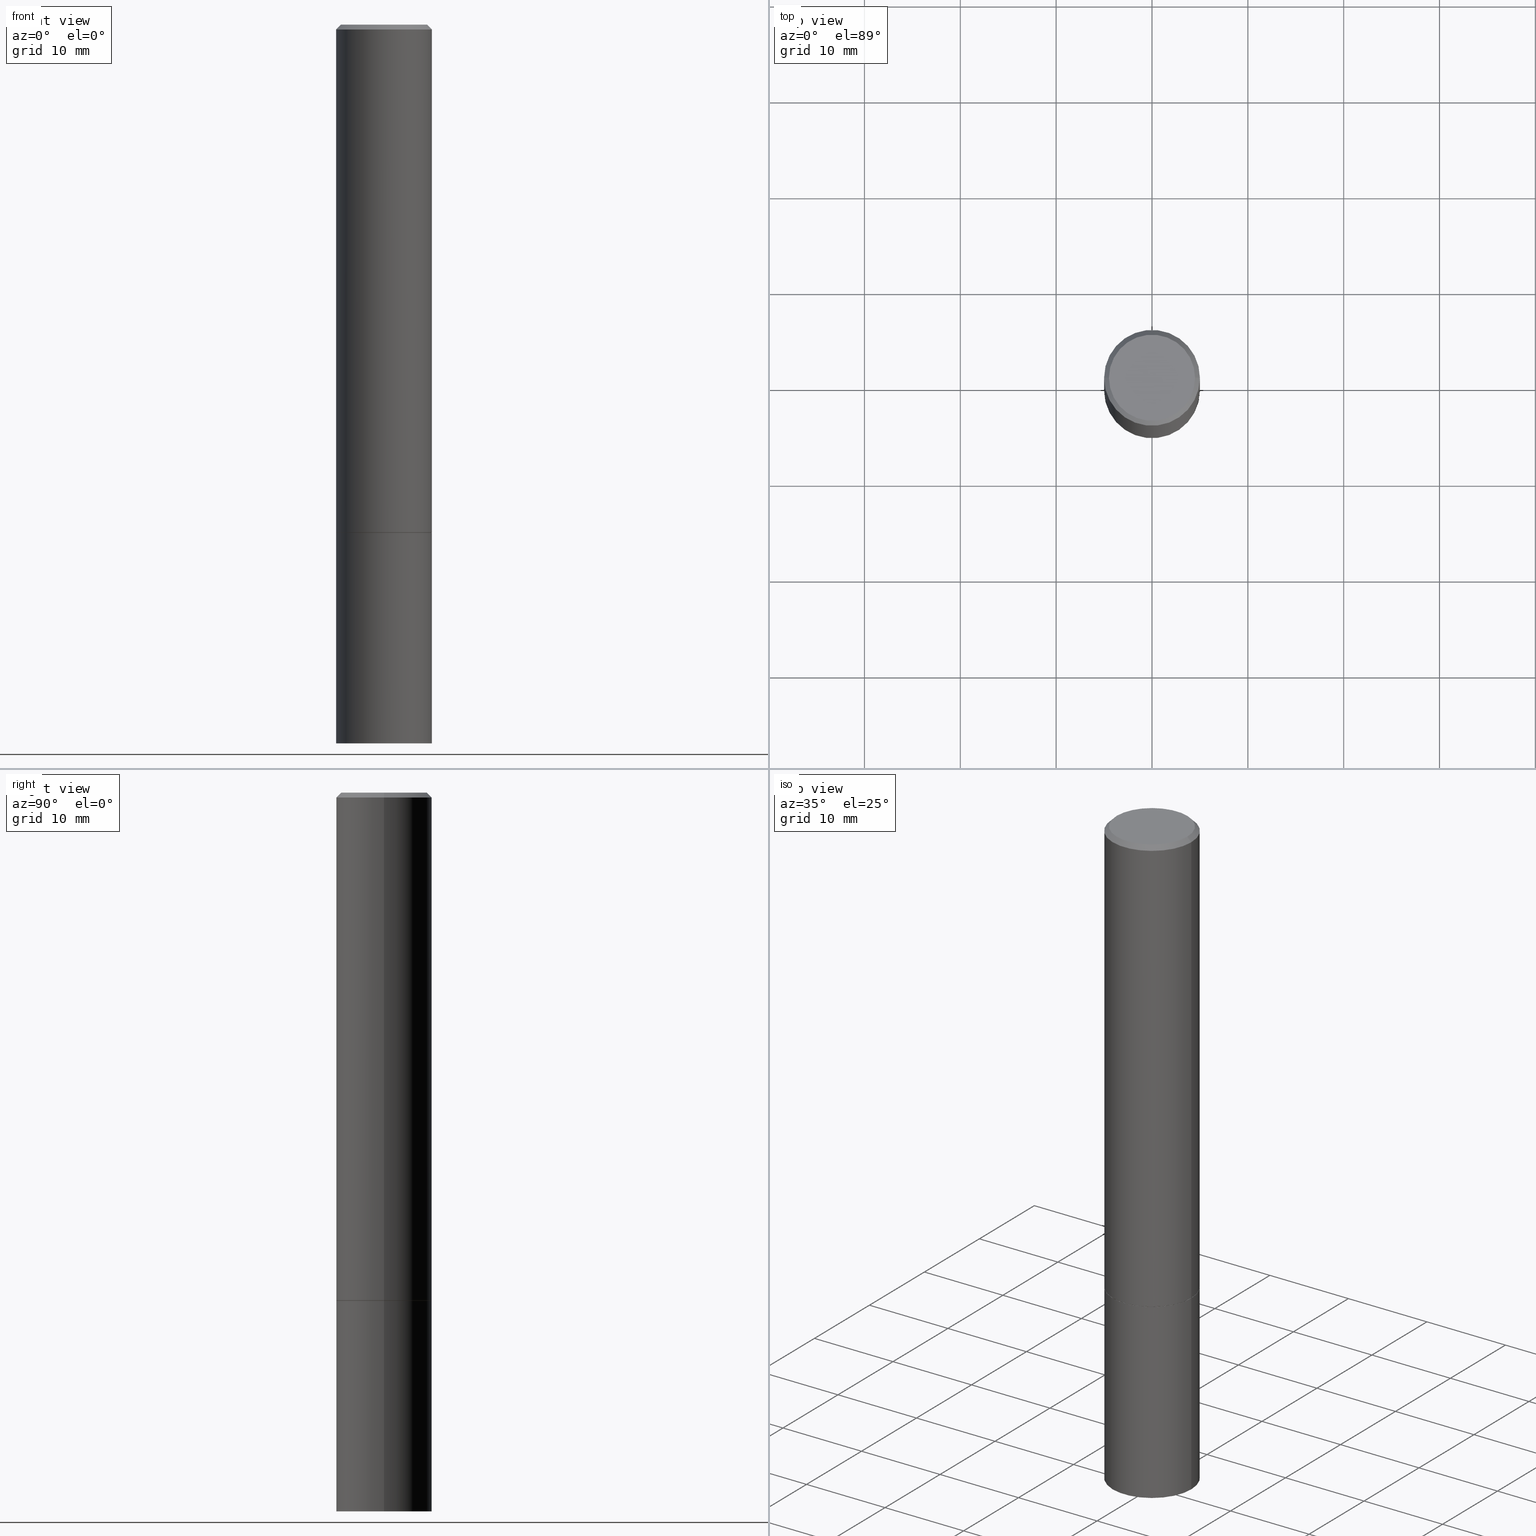
[diagram: canonical four-view strip — front | top / right | iso, engineering-drawing reading convention]
A machine part, canonical four-view strip (front | top / right | iso — engineering-drawing reading convention). The complete STEP part file that produces these views, byte-faithful:
ISO-10303-21;
HEADER;
FILE_DESCRIPTION (( 'STEP AP203' ),
    '1' );
FILE_NAME ('48513.STEP',
    '2024-02-28T11:22:40',
    ( '' ),
    ( '' ),
    'SwSTEP 2.0',
    'SolidWorks 2023',
    '' );
FILE_SCHEMA (( 'CONFIG_CONTROL_DESIGN' ));
ENDSEC;

DATA;
#1 = VERTEX_POINT ( 'NONE', #18 ) ;
#2 = PERSON_AND_ORGANIZATION ( #148, #145 ) ;
#3 = ADVANCED_FACE ( 'NONE', ( #242 ), #350, .T. ) ;
#4 = ORIENTED_EDGE ( 'NONE', *, *, #133, .T. ) ;
#5 = VECTOR ( 'NONE', #69, 39.37007874015748143 ) ;
#6 = VECTOR ( 'NONE', #219, 39.37007874015748854 ) ;
#7 = PLANE ( 'NONE',  #114 ) ;
#8 = ORIENTED_EDGE ( 'NONE', *, *, #235, .F. ) ;
#9 = ADVANCED_FACE ( 'NONE', ( #199 ), #88, .T. ) ;
#10 = CARTESIAN_POINT ( 'NONE',  ( -0.1968499999999997752, 1.304766576325677127E-15, -0.02000000000000001776 ) ) ;
#11 = DIRECTION ( 'NONE',  ( -2.445468806185136597E-29, 3.491481338843145583E-15, 1.000000000000000000 ) ) ;
#12 = CARTESIAN_POINT ( 'NONE',  ( 0.1968499999999997752, -1.420318657638187347E-15, -0.02000000000000001776 ) ) ;
#13 = CARTESIAN_POINT ( 'NONE',  ( 4.890937612370276662E-31, -6.982962677686296539E-17, -0.02000000000000001776 ) ) ;
#14 = DESIGN_CONTEXT ( 'detailed design', #366, 'design' ) ;
#15 = LINE ( 'NONE', #220, #198 ) ;
#16 = CARTESIAN_POINT ( 'NONE',  ( -0.1968499999999999139, 1.398703375343756604E-15, -9.682923725166778072E-30 ) ) ;
#17 = AXIS2_PLACEMENT_3D ( 'NONE', #21, #128, #244 ) ;
#18 = CARTESIAN_POINT ( 'NONE',  ( 0.1968500000000000250, -8.660270312866532536E-15, -2.086699999999999999 ) ) ;
#19 = CARTESIAN_POINT ( 'NONE',  ( 4.890937612370276662E-31, -6.982962677686296539E-17, -0.02000000000000001776 ) ) ;
#20 = APPROVAL ( #336, 'UNSPECIFIED' ) ;
#21 = CARTESIAN_POINT ( 'NONE',  ( 1.234936949548814617E-15, 0.1768499999999997851, -6.153342185293593634E-16 ) ) ;
#22 = CIRCLE ( 'NONE', #302, 0.1968500000000000250 ) ;
#23 = LOCAL_TIME ( 6, 22, 40.00000000000000000, #27 ) ;
#24 = ADVANCED_FACE ( 'NONE', ( #39 ), #125, .F. ) ;
#25 = PERSON_AND_ORGANIZATION ( #148, #145 ) ;
#26 = DIRECTION ( 'NONE',  ( 1.000000000000000000, 0.000000000000000000, 0.000000000000000000 ) ) ;
#27 = COORDINATED_UNIVERSAL_TIME_OFFSET ( 5, 0, .BEHIND. ) ;
#28 = EDGE_CURVE ( 'NONE', #181, #1, #52, .T. ) ;
#29 = VERTEX_POINT ( 'NONE', #64 ) ;
#30 = LOCAL_TIME ( 6, 22, 40.00000000000000000, #53 ) ;
#31 = SECURITY_CLASSIFICATION_LEVEL ( 'unclassified' ) ;
#32 = ORIENTED_EDGE ( 'NONE', *, *, #365, .F. ) ;
#33 = EDGE_LOOP ( 'NONE', ( #126, #155, #139, #120 ) ) ;
#34 = CARTESIAN_POINT ( 'NONE',  ( 5.102959757866523939E-29, -7.285674109763990928E-15, -2.086699999999999999 ) ) ;
#35 = ADVANCED_FACE ( 'NONE', ( #123 ), #175, .T. ) ;
#36 = CIRCLE ( 'NONE', #345, 0.1768499999999997851 ) ;
#37 = LINE ( 'NONE', #10, #312 ) ;
#38 = ORIENTED_EDGE ( 'NONE', *, *, #304, .T. ) ;
#39 = FACE_OUTER_BOUND ( 'NONE', #79, .T. ) ;
#40 = ORIENTED_EDGE ( 'NONE', *, *, #279, .F. ) ;
#41 = CARTESIAN_POINT ( 'NONE',  ( 5.102959757866523939E-29, -7.285674109763990928E-15, -2.086699999999999999 ) ) ;
#42 = ORIENTED_EDGE ( 'NONE', *, *, #341, .F. ) ;
#43 = CARTESIAN_POINT ( 'NONE',  ( -0.1968500000000000250, -7.398956728206258518E-15, -2.952799999999999869 ) ) ;
#44 = FACE_OUTER_BOUND ( 'NONE', #356, .T. ) ;
#45 = CARTESIAN_POINT ( 'NONE',  ( 0.000000000000000000, 0.000000000000000000, 0.000000000000000000 ) ) ;
#46 = APPLICATION_CONTEXT ( 'configuration controlled 3d designs of mechanical parts and assemblies' ) ;
#47 = CIRCLE ( 'NONE', #109, 0.1968499999999997752 ) ;
#48 = DIRECTION ( 'NONE',  ( -2.445468806185136877E-29, 3.491481338843145188E-15, 1.000000000000000000 ) ) ;
#49 = CARTESIAN_POINT ( 'NONE',  ( 7.220980290903470182E-29, -1.030964609733603853E-14, -2.952799999999999869 ) ) ;
#50 = EDGE_CURVE ( 'NONE', #286, #29, #223, .T. ) ;
#51 = DATE_TIME_ROLE ( 'creation_date' ) ;
#52 = CIRCLE ( 'NONE', #67, 0.1968500000000000250 ) ;
#53 = COORDINATED_UNIVERSAL_TIME_OFFSET ( 5, 0, .BEHIND. ) ;
#54 = VERTEX_POINT ( 'NONE', #176 ) ;
#55 = EDGE_LOOP ( 'NONE', ( #213, #200 ) ) ;
#56 = CARTESIAN_POINT ( 'NONE',  ( 0.000000000000000000, 0.000000000000000000, 0.000000000000000000 ) ) ;
#57 = CIRCLE ( 'NONE', #313, 0.1958499999999999963 ) ;
#58 = MANIFOLD_SOLID_BREP ( 'Body-Move/Copy2[1]', #177 ) ;
#59 = CIRCLE ( 'NONE', #363, 0.1968499999999997752 ) ;
#60 = APPROVAL_STATUS ( 'not_yet_approved' ) ;
#61 = DIRECTION ( 'NONE',  ( -2.445468806185136597E-29, 3.491481338843145583E-15, 1.000000000000000000 ) ) ;
#62 = ORIENTED_EDGE ( 'NONE', *, *, #185, .F. ) ;
#63 = MANIFOLD_SOLID_BREP ( 'Body-Move/Copy2[2]', #276 ) ;
#64 = CARTESIAN_POINT ( 'NONE',  ( 0.1968500000000000250, -8.656778831527691107E-15, -2.085699999999999665 ) ) ;
#65 = ORIENTED_EDGE ( 'NONE', *, *, #349, .T. ) ;
#66 = CARTESIAN_POINT ( 'NONE',  ( 5.100514289060338336E-29, -7.282182628425147921E-15, -2.085699999999999665 ) ) ;
#67 = AXIS2_PLACEMENT_3D ( 'NONE', #41, #269, #346 ) ;
#68 = FACE_OUTER_BOUND ( 'NONE', #292, .T. ) ;
#69 = DIRECTION ( 'NONE',  ( -2.445468806185136877E-29, 3.491481338843145188E-15, 1.000000000000000000 ) ) ;
#70 = DIRECTION ( 'NONE',  ( -2.445468806185136597E-29, 3.491481338843145583E-15, 1.000000000000000000 ) ) ;
#71 = EDGE_LOOP ( 'NONE', ( #91, #151, #136, #354 ) ) ;
#72 = AXIS2_PLACEMENT_3D ( 'NONE', #237, #146, #318 ) ;
#73 = AXIS2_PLACEMENT_3D ( 'NONE', #49, #162, #278 ) ;
#74 = CARTESIAN_POINT ( 'NONE',  ( -1.043851414335219820E-46, 1.490343170380447200E-32, 4.268512490100411279E-18 ) ) ;
#75 = CARTESIAN_POINT ( 'NONE',  ( 5.102959757866523939E-29, -7.285674109763990928E-15, -2.086699999999999999 ) ) ;
#76 = ADVANCED_FACE ( 'NONE', ( #94 ), #7, .T. ) ;
#77 = PLANE ( 'NONE',  #159 ) ;
#78 = CARTESIAN_POINT ( 'NONE',  ( 7.220980290903470182E-29, -1.030964609733603853E-14, -2.952799999999999869 ) ) ;
#79 = EDGE_LOOP ( 'NONE', ( #141, #169 ) ) ;
#80 = DIRECTION ( 'NONE',  ( -1.000000000000000000, 6.982962677686266711E-15, 0.000000000000000000 ) ) ;
#81 = PERSON_AND_ORGANIZATION_ROLE ( 'creator' ) ;
#82 = PERSON_AND_ORGANIZATION_ROLE ( 'design_owner' ) ;
#83 = AXIS2_PLACEMENT_3D ( 'NONE', #75, #127, #101 ) ;
#84 = APPROVAL ( #60, 'UNSPECIFIED' ) ;
#85 = VERTEX_POINT ( 'NONE', #291 ) ;
#86 = CALENDAR_DATE ( 2024, 28, 2 ) ;
#87 =( NAMED_UNIT ( * ) PLANE_ANGLE_UNIT ( ) SI_UNIT ( $, .RADIAN. ) );
#88 = CYLINDRICAL_SURFACE ( 'NONE', #239, 0.1968499999999999139 ) ;
#89 = CIRCLE ( 'NONE', #252, 0.1768499999999997851 ) ;
#90 = CC_DESIGN_SECURITY_CLASSIFICATION ( #333, ( #322 ) ) ;
#91 = ORIENTED_EDGE ( 'NONE', *, *, #113, .F. ) ;
#92 = DIRECTION ( 'NONE',  ( 2.445468806185136597E-29, -3.491481338843145583E-15, -1.000000000000000000 ) ) ;
#93 = ORIENTED_EDGE ( 'NONE', *, *, #133, .F. ) ;
#94 = FACE_OUTER_BOUND ( 'NONE', #234, .T. ) ;
#95 = FACE_OUTER_BOUND ( 'NONE', #71, .T. ) ;
#96 = CIRCLE ( 'NONE', #73, 0.1968500000000000250 ) ;
#97 = DIRECTION ( 'NONE',  ( -2.445468806185136597E-29, 3.491481338843145583E-15, 1.000000000000000000 ) ) ;
#98 = ORIENTED_EDGE ( 'NONE', *, *, #215, .T. ) ;
#99 = DIRECTION ( 'NONE',  ( -0.7071067811865469066, 2.468850131082251144E-15, -0.7071067811865479058 ) ) ;
#100 = ADVANCED_FACE ( 'NONE', ( #95 ), #281, .T. ) ;
#101 = DIRECTION ( 'NONE',  ( 1.000000000000000000, -6.982962677686268288E-15, 0.000000000000000000 ) ) ;
#102 = CONICAL_SURFACE ( 'NONE', #309, 0.1968499999999997752, 0.7853981633974476129 ) ;
#103 = APPROVAL_PERSON_ORGANIZATION ( #2, #355, #115 ) ;
#104 = DIRECTION ( 'NONE',  ( -2.445468806185136597E-29, 3.491481338843145583E-15, 1.000000000000000000 ) ) ;
#105 = ADVANCED_FACE ( 'NONE', ( #150 ), #348, .T. ) ;
#106 = DIRECTION ( 'NONE',  ( 0.7071067811865232589, -2.468850131082003836E-15, 0.7071067811865715536 ) ) ;
#107 = LINE ( 'NONE', #275, #6 ) ;
#108 = EDGE_CURVE ( 'NONE', #243, #298, #57, .T. ) ;
#109 = AXIS2_PLACEMENT_3D ( 'NONE', #208, #264, #214 ) ;
#110 = FACE_OUTER_BOUND ( 'NONE', #178, .T. ) ;
#111 = PERSON_AND_ORGANIZATION_ROLE ( 'classification_officer' ) ;
#112 = CALENDAR_DATE ( 2024, 28, 2 ) ;
#113 = EDGE_CURVE ( 'NONE', #319, #54, #89, .T. ) ;
#114 = AXIS2_PLACEMENT_3D ( 'NONE', #211, #182, #238 ) ;
#115 = APPROVAL_ROLE ( '' ) ;
#116 = PERSON_AND_ORGANIZATION ( #148, #145 ) ;
#117 = CARTESIAN_POINT ( 'NONE',  ( 5.102959757866523939E-29, -7.285674109763990928E-15, -2.086699999999999999 ) ) ;
#118 = CC_DESIGN_DATE_AND_TIME_ASSIGNMENT ( #258, #137, ( #333 ) ) ;
#119 = CC_DESIGN_APPROVAL ( #20, ( #322 ) ) ;
#120 = ORIENTED_EDGE ( 'NONE', *, *, #50, .F. ) ;
#121 = DIRECTION ( 'NONE',  ( -1.000000000000000000, 6.982962677686266711E-15, 0.000000000000000000 ) ) ;
#122 = DIRECTION ( 'NONE',  ( -2.445468806185136597E-29, 3.491481338843145583E-15, 1.000000000000000000 ) ) ;
#123 = FACE_OUTER_BOUND ( 'NONE', #265, .T. ) ;
#124 = CARTESIAN_POINT ( 'NONE',  ( 4.890937612370276662E-31, -6.982962677686296539E-17, -0.02000000000000001776 ) ) ;
#125 = PLANE ( 'NONE',  #72 ) ;
#126 = ORIENTED_EDGE ( 'NONE', *, *, #274, .F. ) ;
#127 = DIRECTION ( 'NONE',  ( -2.445468806185136597E-29, 3.491481338843145583E-15, 1.000000000000000000 ) ) ;
#128 = DIRECTION ( 'NONE',  ( 2.438088387897960049E-29, -3.491481338843145188E-15, -1.000000000000000000 ) ) ;
#129 = CARTESIAN_POINT ( 'NONE',  ( -0.1968500000000000250, -2.277302752257247033E-15, -2.085699999999999665 ) ) ;
#130 = APPROVAL_DATE_TIME ( #311, #84 ) ;
#131 = AXIS2_PLACEMENT_3D ( 'NONE', #56, #289, #26 ) ;
#132 = PERSON_AND_ORGANIZATION ( #148, #145 ) ;
#133 = EDGE_CURVE ( 'NONE', #29, #286, #212, .T. ) ;
#134 = APPROVAL_DATE_TIME ( #314, #20 ) ;
#135 = CALENDAR_DATE ( 2024, 28, 2 ) ;
#136 = ORIENTED_EDGE ( 'NONE', *, *, #149, .T. ) ;
#137 = DATE_TIME_ROLE ( 'classification_date' ) ;
#138 = CC_DESIGN_PERSON_AND_ORGANIZATION_ASSIGNMENT ( #166, #226, ( #322 ) ) ;
#139 = ORIENTED_EDGE ( 'NONE', *, *, #235, .T. ) ;
#140 = DIRECTION ( 'NONE',  ( 1.000000000000000000, -6.982962677686268288E-15, 0.000000000000000000 ) ) ;
#141 = ORIENTED_EDGE ( 'NONE', *, *, #185, .T. ) ;
#142 = DIMENSIONAL_EXPONENTS ( 1.000000000000000000, 0.000000000000000000, 0.000000000000000000, 0.000000000000000000, 0.000000000000000000, 0.000000000000000000, 0.000000000000000000 ) ;
#143 = DIRECTION ( 'NONE',  ( 1.000000000000000000, -6.982962677686266711E-15, 4.875932113059884174E-29 ) ) ;
#144 = VECTOR ( 'NONE', #106, 39.37007874015748854 ) ;
#145 = ORGANIZATION ( 'UNSPECIFIED', 'UNSPECIFIED', '' ) ;
#146 = DIRECTION ( 'NONE',  ( 2.438088387897960049E-29, -3.491481338843145188E-15, -1.000000000000000000 ) ) ;
#147 = VERTEX_POINT ( 'NONE', #12 ) ;
#148 = PERSON ( 'UNSPECIFIED', 'UNSPECIFIED', 'UNSPECIFIED', ('UNSPECIFIED'), ('UNSPECIFIED'), ('UNSPECIFIED') ) ;
#149 = EDGE_CURVE ( 'NONE', #147, #85, #47, .T. ) ;
#150 = FACE_OUTER_BOUND ( 'NONE', #316, .T. ) ;
#151 = ORIENTED_EDGE ( 'NONE', *, *, #284, .T. ) ;
#152 = CARTESIAN_POINT ( 'NONE',  ( 5.102959757866523939E-29, -7.285674109763990928E-15, -2.086699999999999999 ) ) ;
#153 = APPROVAL_PERSON_ORGANIZATION ( #116, #84, #364 ) ;
#154 = DIRECTION ( 'NONE',  ( -2.445468806185136597E-29, 3.491481338843145583E-15, 1.000000000000000000 ) ) ;
#155 = ORIENTED_EDGE ( 'NONE', *, *, #108, .T. ) ;
#156 = PLANE ( 'NONE',  #17 ) ;
#157 = ORIENTED_EDGE ( 'NONE', *, *, #284, .F. ) ;
#158 = DIRECTION ( 'NONE',  ( -2.445468806185136597E-29, 3.491481338843145583E-15, 1.000000000000000000 ) ) ;
#159 = AXIS2_PLACEMENT_3D ( 'NONE', #335, #330, #194 ) ;
#160 = CARTESIAN_POINT ( 'NONE',  ( 0.1768499999999997851, -1.316798864272040563E-15, 4.268512490109333727E-18 ) ) ;
#161 =( LENGTH_UNIT ( ) NAMED_UNIT ( * ) SI_UNIT ( $, .METRE. ) );
#162 = DIRECTION ( 'NONE',  ( -2.445468806185136597E-29, 3.491481338843145583E-15, 1.000000000000000000 ) ) ;
#163 = EDGE_CURVE ( 'NONE', #54, #85, #37, .T. ) ;
#164 = VECTOR ( 'NONE', #328, 39.37007874015748143 ) ;
#165 = CC_DESIGN_PERSON_AND_ORGANIZATION_ASSIGNMENT ( #170, #82, ( #240 ) ) ;
#166 = PERSON_AND_ORGANIZATION ( #148, #145 ) ;
#167 = ORIENTED_EDGE ( 'NONE', *, *, #50, .T. ) ;
#168 =( NAMED_UNIT ( * ) SI_UNIT ( $, .STERADIAN. ) SOLID_ANGLE_UNIT ( ) );
#169 = ORIENTED_EDGE ( 'NONE', *, *, #28, .T. ) ;
#170 = PERSON_AND_ORGANIZATION ( #148, #145 ) ;
#171 = LOCAL_TIME ( 6, 22, 40.00000000000000000, #197 ) ;
#172 = ORIENTED_EDGE ( 'NONE', *, *, #179, .F. ) ;
#173 = PERSON_AND_ORGANIZATION ( #148, #145 ) ;
#174 = ORIENTED_EDGE ( 'NONE', *, *, #274, .T. ) ;
#175 = CYLINDRICAL_SURFACE ( 'NONE', #257, 0.1968499999999999139 ) ;
#176 = CARTESIAN_POINT ( 'NONE',  ( -0.1768499999999997851, 1.269851762937246069E-15, 4.268512490091652920E-18 ) ) ;
#177 = CLOSED_SHELL ( 'NONE', ( #105, #76, #24, #268 ) ) ;
#178 = EDGE_LOOP ( 'NONE', ( #172, #202, #296, #334 ) ) ;
#179 = EDGE_CURVE ( 'NONE', #188, #181, #321, .T. ) ;
#180 = CARTESIAN_POINT ( 'NONE',  ( 5.100514289060338336E-29, -7.282182628425147921E-15, -2.085699999999999665 ) ) ;
#181 = VERTEX_POINT ( 'NONE', #300 ) ;
#182 = DIRECTION ( 'NONE',  ( 2.438088387897960049E-29, -3.491481338843145188E-15, -1.000000000000000000 ) ) ;
#183 = ORIENTED_EDGE ( 'NONE', *, *, #349, .F. ) ;
#184 = CARTESIAN_POINT ( 'NONE',  ( 5.102959757866523939E-29, -7.285674109763990928E-15, -2.086699999999999999 ) ) ;
#185 = EDGE_CURVE ( 'NONE', #1, #181, #22, .T. ) ;
#186 = CONICAL_SURFACE ( 'NONE', #83, 0.1958499999999999963, 0.7853981633974141952 ) ;
#187 = DIRECTION ( 'NONE',  ( 1.000000000000000000, -6.982962677686266711E-15, 4.875932113059884174E-29 ) ) ;
#188 = VERTEX_POINT ( 'NONE', #43 ) ;
#189 = DIRECTION ( 'NONE',  ( -2.445468806185136597E-29, 3.491481338843145583E-15, 1.000000000000000000 ) ) ;
#190 = DIRECTION ( 'NONE',  ( -2.445468806185136877E-29, 3.491481338843145188E-15, 1.000000000000000000 ) ) ;
#191 = AXIS2_PLACEMENT_3D ( 'NONE', #216, #70, #236 ) ;
#192 = LOCAL_TIME ( 6, 22, 40.00000000000000000, #283 ) ;
#193 = LINE ( 'NONE', #250, #310 ) ;
#194 = DIRECTION ( 'NONE',  ( 1.000000000000000000, -6.982962677686265922E-15, 4.876176775795935793E-29 ) ) ;
#195 = APPLICATION_PROTOCOL_DEFINITION ( 'international standard', 'config_control_design', 1994, #46 ) ;
#196 = VECTOR ( 'NONE', #224, 39.37007874015748854 ) ;
#197 = COORDINATED_UNIVERSAL_TIME_OFFSET ( 5, 0, .BEHIND. ) ;
#198 = VECTOR ( 'NONE', #190, 39.37007874015748143 ) ;
#199 = FACE_OUTER_BOUND ( 'NONE', #230, .T. ) ;
#200 = ORIENTED_EDGE ( 'NONE', *, *, #113, .T. ) ;
#201 = CALENDAR_DATE ( 2024, 28, 2 ) ;
#202 = ORIENTED_EDGE ( 'NONE', *, *, #341, .T. ) ;
#203 = CC_DESIGN_DATE_AND_TIME_ASSIGNMENT ( #254, #51, ( #210 ) ) ;
#204 = AXIS2_PLACEMENT_3D ( 'NONE', #180, #11, #301 ) ;
#205 = CIRCLE ( 'NONE', #233, 0.1968500000000000250 ) ;
#206 = PRODUCT_DEFINITION_SHAPE ( 'NONE', 'NONE',  #210 ) ;
#207 = ORIENTED_EDGE ( 'NONE', *, *, #327, .T. ) ;
#208 = CARTESIAN_POINT ( 'NONE',  ( 4.890937612370276662E-31, -6.982962677686296539E-17, -0.02000000000000001776 ) ) ;
#209 = DIRECTION ( 'NONE',  ( -2.445468806185136597E-29, 3.491481338843145583E-15, 1.000000000000000000 ) ) ;
#210 = PRODUCT_DEFINITION ( 'UNKNOWN', '', #322, #14 ) ;
#211 = CARTESIAN_POINT ( 'NONE',  ( 1.374596203102613789E-15, 0.1968499999999896999, -2.952800000000000313 ) ) ;
#212 = CIRCLE ( 'NONE', #344, 0.1968500000000000250 ) ;
#213 = ORIENTED_EDGE ( 'NONE', *, *, #279, .T. ) ;
#214 = DIRECTION ( 'NONE',  ( 1.000000000000000000, -6.982962677686266711E-15, 0.000000000000000000 ) ) ;
#215 = EDGE_CURVE ( 'NONE', #298, #243, #246, .T. ) ;
#216 = CARTESIAN_POINT ( 'NONE',  ( 0.000000000000000000, 0.000000000000000000, 0.000000000000000000 ) ) ;
#217 = UNCERTAINTY_MEASURE_WITH_UNIT (LENGTH_MEASURE( 1.000000000000000082E-05 ), #326, 'distance_accuracy_value', 'NONE');
#218 = LENGTH_MEASURE_WITH_UNIT ( LENGTH_MEASURE( 0.02539999999999999897 ), #161 );
#219 = DIRECTION ( 'NONE',  ( 0.7071067811865469066, -7.319954787623252890E-15, -0.7071067811865479058 ) ) ;
#220 = CARTESIAN_POINT ( 'NONE',  ( 0.1968499999999999139, -1.374596203102541017E-15, 9.598753983154295253E-30 ) ) ;
#221 = ADVANCED_FACE ( 'NONE', ( #68 ), #102, .T. ) ;
#222 = DIRECTION ( 'NONE',  ( 1.000000000000000000, -6.982962677686267499E-15, 0.000000000000000000 ) ) ;
#223 = CIRCLE ( 'NONE', #204, 0.1968500000000000250 ) ;
#224 = DIRECTION ( 'NONE',  ( -0.7071067811865232589, 7.493145998870265808E-15, 0.7071067811865715536 ) ) ;
#225 = SHAPE_DEFINITION_REPRESENTATION ( #206, #308 ) ;
#226 = PERSON_AND_ORGANIZATION_ROLE ( 'design_supplier' ) ;
#227 = APPROVAL_DATE_TIME ( #259, #355 ) ;
#228 = ORIENTED_EDGE ( 'NONE', *, *, #179, .T. ) ;
#229 = APPLICATION_PROTOCOL_DEFINITION ( 'international standard', 'config_control_design', 1994, #366 ) ;
#230 = EDGE_LOOP ( 'NONE', ( #260, #167, #38, #183 ) ) ;
#231 = PERSON_AND_ORGANIZATION_ROLE ( 'creator' ) ;
#232 = VERTEX_POINT ( 'NONE', #245 ) ;
#233 = AXIS2_PLACEMENT_3D ( 'NONE', #78, #104, #222 ) ;
#234 = EDGE_LOOP ( 'NONE', ( #262, #42 ) ) ;
#235 = EDGE_CURVE ( 'NONE', #298, #29, #273, .T. ) ;
#236 = DIRECTION ( 'NONE',  ( 1.000000000000000000, -6.982962677686265922E-15, 4.876176775795935793E-29 ) ) ;
#237 = CARTESIAN_POINT ( 'NONE',  ( 1.374596203102592490E-15, 0.1968499999999927252, -2.086700000000000887 ) ) ;
#238 = DIRECTION ( 'NONE',  ( -1.000000000000000000, 6.982962677686265922E-15, -4.876176775795935793E-29 ) ) ;
#239 = AXIS2_PLACEMENT_3D ( 'NONE', #261, #61, #317 ) ;
#240 = PRODUCT ( '48513', '48513', '', ( #255 ) ) ;
#241 = CARTESIAN_POINT ( 'NONE',  ( -1.043851414335219820E-46, 1.490343170380447200E-32, 4.268512490100411279E-18 ) ) ;
#242 = FACE_OUTER_BOUND ( 'NONE', #33, .T. ) ;
#243 = VERTEX_POINT ( 'NONE', #303 ) ;
#244 = DIRECTION ( 'NONE',  ( -1.000000000000000000, 6.982962677686265922E-15, -4.876176775795935793E-29 ) ) ;
#245 = CARTESIAN_POINT ( 'NONE',  ( 0.1968500000000000250, -1.168424230043858014E-14, -2.952799999999999869 ) ) ;
#246 = CIRCLE ( 'NONE', #263, 0.1958499999999999963 ) ;
#247 = DIRECTION ( 'NONE',  ( 1.000000000000000000, -6.982962677686266711E-15, 0.000000000000000000 ) ) ;
#248 = EDGE_CURVE ( 'NONE', #286, #85, #249, .T. ) ;
#249 = LINE ( 'NONE', #16, #164 ) ;
#250 = CARTESIAN_POINT ( 'NONE',  ( 0.1968500000000000250, -1.374596203102541608E-15, 9.598753983154300858E-30 ) ) ;
#251 = CC_DESIGN_PERSON_AND_ORGANIZATION_ASSIGNMENT ( #25, #231, ( #210 ) ) ;
#252 = AXIS2_PLACEMENT_3D ( 'NONE', #241, #209, #143 ) ;
#253 = CC_DESIGN_APPROVAL ( #84, ( #210 ) ) ;
#254 = DATE_AND_TIME ( #342, #192 ) ;
#255 = MECHANICAL_CONTEXT ( 'NONE', #46, 'mechanical' ) ;
#256 = ORIENTED_EDGE ( 'NONE', *, *, #149, .F. ) ;
#257 = AXIS2_PLACEMENT_3D ( 'NONE', #351, #122, #266 ) ;
#258 = DATE_AND_TIME ( #135, #171 ) ;
#259 = DATE_AND_TIME ( #86, #30 ) ;
#260 = ORIENTED_EDGE ( 'NONE', *, *, #248, .F. ) ;
#261 = CARTESIAN_POINT ( 'NONE',  ( 0.000000000000000000, 0.000000000000000000, 0.000000000000000000 ) ) ;
#262 = ORIENTED_EDGE ( 'NONE', *, *, #327, .F. ) ;
#263 = AXIS2_PLACEMENT_3D ( 'NONE', #184, #154, #271 ) ;
#264 = DIRECTION ( 'NONE',  ( -2.445468806185136597E-29, 3.491481338843145583E-15, 1.000000000000000000 ) ) ;
#265 = EDGE_LOOP ( 'NONE', ( #4, #305, #256, #343 ) ) ;
#266 = DIRECTION ( 'NONE',  ( 1.000000000000000000, -6.982962677686266711E-15, 4.876176775795935793E-29 ) ) ;
#267 = DIRECTION ( 'NONE',  ( 1.000000000000000000, -6.982962677686267499E-15, 0.000000000000000000 ) ) ;
#268 = ADVANCED_FACE ( 'NONE', ( #110 ), #306, .T. ) ;
#269 = DIRECTION ( 'NONE',  ( -2.445468806185136597E-29, 3.491481338843145583E-15, 1.000000000000000000 ) ) ;
#270 = LOCAL_TIME ( 6, 22, 40.00000000000000000, #288 ) ;
#271 = DIRECTION ( 'NONE',  ( 1.000000000000000000, -6.982962677686268288E-15, 0.000000000000000000 ) ) ;
#272 = EDGE_LOOP ( 'NONE', ( #98, #174, #93, #8 ) ) ;
#273 = LINE ( 'NONE', #359, #144 ) ;
#274 = EDGE_CURVE ( 'NONE', #243, #286, #360, .T. ) ;
#275 = CARTESIAN_POINT ( 'NONE',  ( 0.1968499999999997752, -1.420318657638187347E-15, -0.02000000000000001776 ) ) ;
#276 = CLOSED_SHELL ( 'NONE', ( #331, #35, #100, #221, #9, #3, #299, #361 ) ) ;
#277 = CARTESIAN_POINT ( 'NONE',  ( 0.1958499999999999963, -8.653287350188846522E-15, -2.086699999999999999 ) ) ;
#278 = DIRECTION ( 'NONE',  ( 1.000000000000000000, -6.982962677686267499E-15, 0.000000000000000000 ) ) ;
#279 = EDGE_CURVE ( 'NONE', #54, #319, #36, .T. ) ;
#280 = DIRECTION ( 'NONE',  ( -2.445468806185136597E-29, 3.491481338843145583E-15, 1.000000000000000000 ) ) ;
#281 = CONICAL_SURFACE ( 'NONE', #320, 0.1968499999999997752, 0.7853981633974476129 ) ;
#282 = APPROVAL_PERSON_ORGANIZATION ( #132, #20, #285 ) ;
#283 = COORDINATED_UNIVERSAL_TIME_OFFSET ( 5, 0, .BEHIND. ) ;
#284 = EDGE_CURVE ( 'NONE', #319, #147, #107, .T. ) ;
#285 = APPROVAL_ROLE ( '' ) ;
#286 = VERTEX_POINT ( 'NONE', #129 ) ;
#287 = AXIS2_PLACEMENT_3D ( 'NONE', #117, #338, #140 ) ;
#288 = COORDINATED_UNIVERSAL_TIME_OFFSET ( 5, 0, .BEHIND. ) ;
#289 = DIRECTION ( 'NONE',  ( 0.000000000000000000, 0.000000000000000000, 1.000000000000000000 ) ) ;
#290 = ORIENTED_EDGE ( 'NONE', *, *, #108, .F. ) ;
#291 = CARTESIAN_POINT ( 'NONE',  ( -0.1968499999999997752, 1.304766576325677127E-15, -0.02000000000000001776 ) ) ;
#292 = EDGE_LOOP ( 'NONE', ( #157, #40, #352, #65 ) ) ;
#293 = AXIS2_PLACEMENT_3D ( 'NONE', #45, #158, #357 ) ;
#294 = DIRECTION ( 'NONE',  ( -2.445468806185136597E-29, 3.491481338843145583E-15, 1.000000000000000000 ) ) ;
#295 =( GEOMETRIC_REPRESENTATION_CONTEXT ( 3 ) GLOBAL_UNCERTAINTY_ASSIGNED_CONTEXT ( ( #217 ) ) GLOBAL_UNIT_ASSIGNED_CONTEXT ( ( #326, #87, #168 ) ) REPRESENTATION_CONTEXT ( 'NONE', 'WORKASPACE' ) );
#296 = ORIENTED_EDGE ( 'NONE', *, *, #365, .T. ) ;
#297 = DIRECTION ( 'NONE',  ( 2.445468806185136597E-29, -3.491481338843145583E-15, -1.000000000000000000 ) ) ;
#298 = VERTEX_POINT ( 'NONE', #277 ) ;
#299 = ADVANCED_FACE ( 'NONE', ( #44 ), #77, .F. ) ;
#300 = CARTESIAN_POINT ( 'NONE',  ( -0.1968500000000000250, -7.398956728206258518E-15, -2.086699999999999999 ) ) ;
#301 = DIRECTION ( 'NONE',  ( 1.000000000000000000, -6.982962677686267499E-15, 0.000000000000000000 ) ) ;
#302 = AXIS2_PLACEMENT_3D ( 'NONE', #152, #325, #267 ) ;
#303 = CARTESIAN_POINT ( 'NONE',  ( -0.1958499999999999963, -5.888777707429612535E-15, -2.086699999999999999 ) ) ;
#304 = EDGE_CURVE ( 'NONE', #29, #147, #15, .T. ) ;
#305 = ORIENTED_EDGE ( 'NONE', *, *, #248, .T. ) ;
#306 = CYLINDRICAL_SURFACE ( 'NONE', #293, 0.1968500000000000250 ) ;
#307 = FACE_OUTER_BOUND ( 'NONE', #272, .T. ) ;
#308 = ADVANCED_BREP_SHAPE_REPRESENTATION ( '48513', ( #58, #63, #131 ), #295 ) ;
#309 = AXIS2_PLACEMENT_3D ( 'NONE', #13, #297, #80 ) ;
#310 = VECTOR ( 'NONE', #48, 39.37007874015748143 ) ;
#311 = DATE_AND_TIME ( #112, #270 ) ;
#312 = VECTOR ( 'NONE', #99, 39.37007874015748854 ) ;
#313 = AXIS2_PLACEMENT_3D ( 'NONE', #34, #97, #347 ) ;
#314 = DATE_AND_TIME ( #201, #23 ) ;
#315 = CC_DESIGN_PERSON_AND_ORGANIZATION_ASSIGNMENT ( #337, #111, ( #333 ) ) ;
#316 = EDGE_LOOP ( 'NONE', ( #207, #228, #62, #32 ) ) ;
#317 = DIRECTION ( 'NONE',  ( 1.000000000000000000, -6.982962677686266711E-15, 4.876176775795935793E-29 ) ) ;
#318 = DIRECTION ( 'NONE',  ( -1.000000000000000000, 6.982962677686265922E-15, -4.876176775795935793E-29 ) ) ;
#319 = VERTEX_POINT ( 'NONE', #160 ) ;
#320 = AXIS2_PLACEMENT_3D ( 'NONE', #124, #92, #121 ) ;
#321 = LINE ( 'NONE', #324, #5 ) ;
#322 = PRODUCT_DEFINITION_FORMATION_WITH_SPECIFIED_SOURCE ( 'ANY', '', #240, .NOT_KNOWN. ) ;
#323 = CC_DESIGN_PERSON_AND_ORGANIZATION_ASSIGNMENT ( #173, #81, ( #322 ) ) ;
#324 = CARTESIAN_POINT ( 'NONE',  ( -0.1968500000000000250, 1.398703375343757393E-15, -9.682923725166783677E-30 ) ) ;
#325 = DIRECTION ( 'NONE',  ( -2.445468806185136597E-29, 3.491481338843145583E-15, 1.000000000000000000 ) ) ;
#326 =( CONVERSION_BASED_UNIT ( 'INCH', #218 ) LENGTH_UNIT ( ) NAMED_UNIT ( #142 ) );
#327 = EDGE_CURVE ( 'NONE', #232, #188, #205, .T. ) ;
#328 = DIRECTION ( 'NONE',  ( -2.445468806185136877E-29, 3.491481338843145188E-15, 1.000000000000000000 ) ) ;
#329 = PRODUCT_RELATED_PRODUCT_CATEGORY ( 'detail', '', ( #240 ) ) ;
#330 = DIRECTION ( 'NONE',  ( -2.438088387897960049E-29, 3.491481338843145188E-15, 1.000000000000000000 ) ) ;
#331 = ADVANCED_FACE ( 'NONE', ( #307 ), #186, .T. ) ;
#332 = FACE_OUTER_BOUND ( 'NONE', #55, .T. ) ;
#333 = SECURITY_CLASSIFICATION ( '', '', #31 ) ;
#334 = ORIENTED_EDGE ( 'NONE', *, *, #28, .F. ) ;
#335 = CARTESIAN_POINT ( 'NONE',  ( 5.102959757866523939E-29, -7.285674109763990928E-15, -2.086699999999999999 ) ) ;
#336 = APPROVAL_STATUS ( 'not_yet_approved' ) ;
#337 = PERSON_AND_ORGANIZATION ( #148, #145 ) ;
#338 = DIRECTION ( 'NONE',  ( -2.445468806185136597E-29, 3.491481338843145583E-15, 1.000000000000000000 ) ) ;
#339 = ORIENTED_EDGE ( 'NONE', *, *, #215, .F. ) ;
#340 = APPROVAL_STATUS ( 'not_yet_approved' ) ;
#341 = EDGE_CURVE ( 'NONE', #188, #232, #96, .T. ) ;
#342 = CALENDAR_DATE ( 2024, 28, 2 ) ;
#343 = ORIENTED_EDGE ( 'NONE', *, *, #304, .F. ) ;
#344 = AXIS2_PLACEMENT_3D ( 'NONE', #66, #294, #353 ) ;
#345 = AXIS2_PLACEMENT_3D ( 'NONE', #74, #280, #187 ) ;
#346 = DIRECTION ( 'NONE',  ( 1.000000000000000000, -6.982962677686267499E-15, 0.000000000000000000 ) ) ;
#347 = DIRECTION ( 'NONE',  ( 1.000000000000000000, -6.982962677686268288E-15, 0.000000000000000000 ) ) ;
#348 = CYLINDRICAL_SURFACE ( 'NONE', #191, 0.1968500000000000250 ) ;
#349 = EDGE_CURVE ( 'NONE', #85, #147, #59, .T. ) ;
#350 = CONICAL_SURFACE ( 'NONE', #287, 0.1958499999999999963, 0.7853981633974141952 ) ;
#351 = CARTESIAN_POINT ( 'NONE',  ( 0.000000000000000000, 0.000000000000000000, 0.000000000000000000 ) ) ;
#352 = ORIENTED_EDGE ( 'NONE', *, *, #163, .T. ) ;
#353 = DIRECTION ( 'NONE',  ( 1.000000000000000000, -6.982962677686267499E-15, 0.000000000000000000 ) ) ;
#354 = ORIENTED_EDGE ( 'NONE', *, *, #163, .F. ) ;
#355 = APPROVAL ( #340, 'UNSPECIFIED' ) ;
#356 = EDGE_LOOP ( 'NONE', ( #339, #290 ) ) ;
#357 = DIRECTION ( 'NONE',  ( 1.000000000000000000, -6.982962677686265922E-15, 4.876176775795935793E-29 ) ) ;
#358 = CC_DESIGN_APPROVAL ( #355, ( #333 ) ) ;
#359 = CARTESIAN_POINT ( 'NONE',  ( 0.1958499999999999963, -8.653287350188846522E-15, -2.086699999999999999 ) ) ;
#360 = LINE ( 'NONE', #362, #196 ) ;
#361 = ADVANCED_FACE ( 'NONE', ( #332 ), #156, .F. ) ;
#362 = CARTESIAN_POINT ( 'NONE',  ( -0.1958499999999999963, -5.894076161777834937E-15, -2.086699999999999999 ) ) ;
#363 = AXIS2_PLACEMENT_3D ( 'NONE', #19, #189, #247 ) ;
#364 = APPROVAL_ROLE ( '' ) ;
#365 = EDGE_CURVE ( 'NONE', #232, #1, #193, .T. ) ;
#366 = APPLICATION_CONTEXT ( 'configuration controlled 3d designs of mechanical parts and assemblies' ) ;
ENDSEC;
END-ISO-10303-21;
